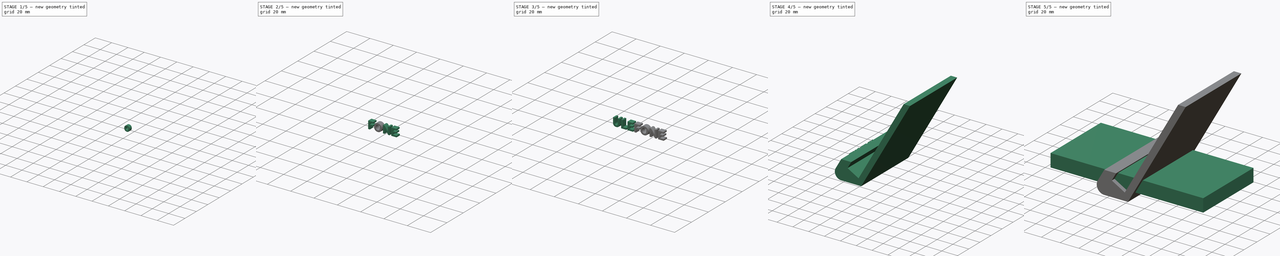
[diagram: build sequence overview — one tinted view per stage of 5, left to right]
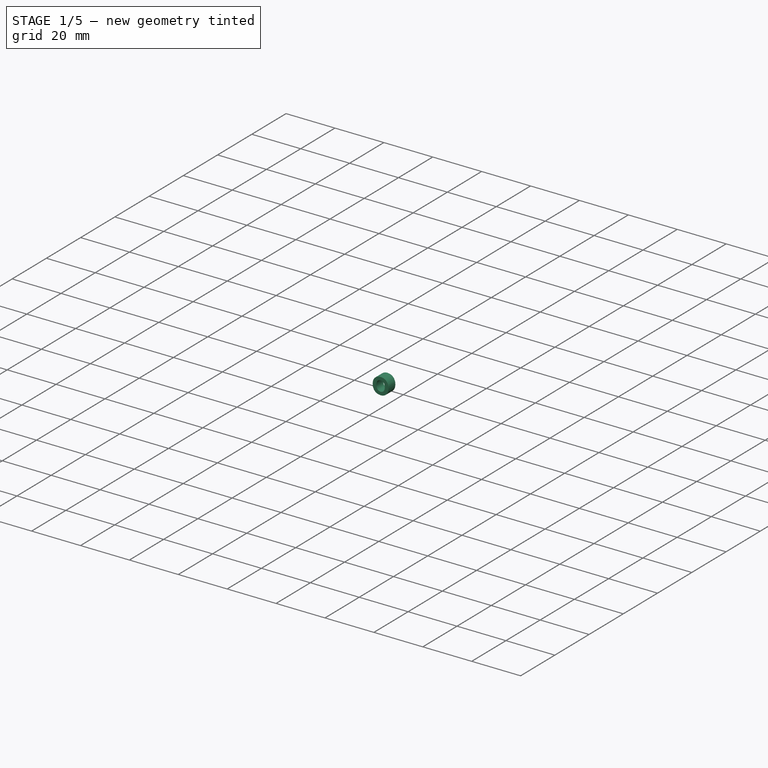
[diagram: stage 1 of 5 — iso view after this stage's code; geometry added in this stage tinted green]
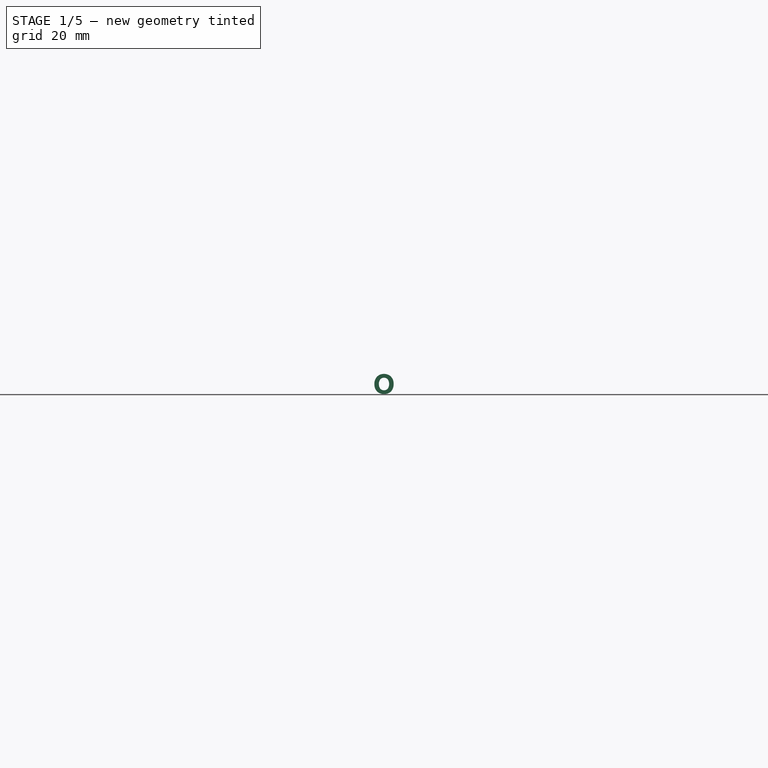
[diagram: stage 1 of 5 — front view after this stage's code; geometry added in this stage tinted green]
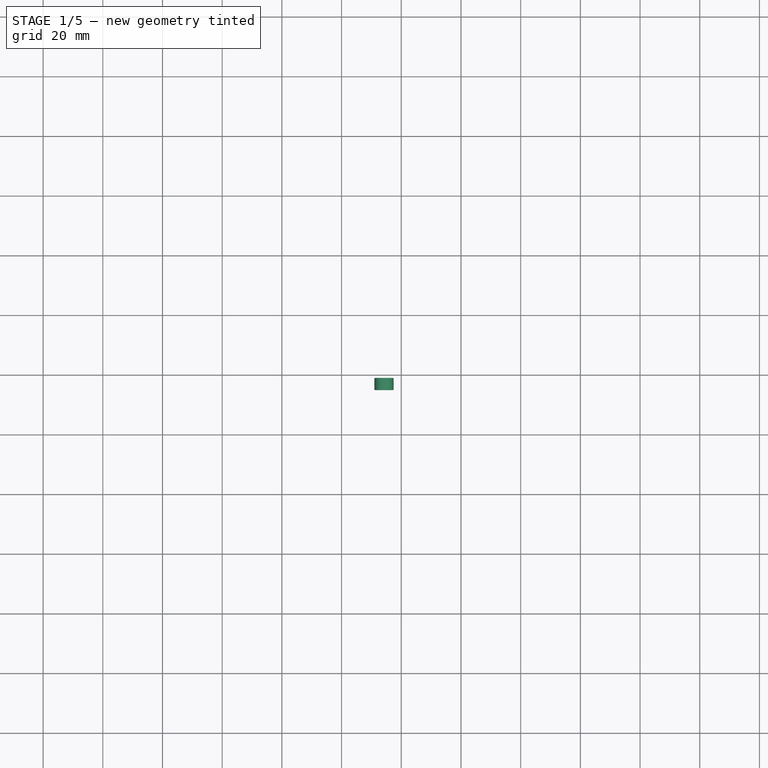
[diagram: stage 1 of 5 — top view after this stage's code; geometry added in this stage tinted green]
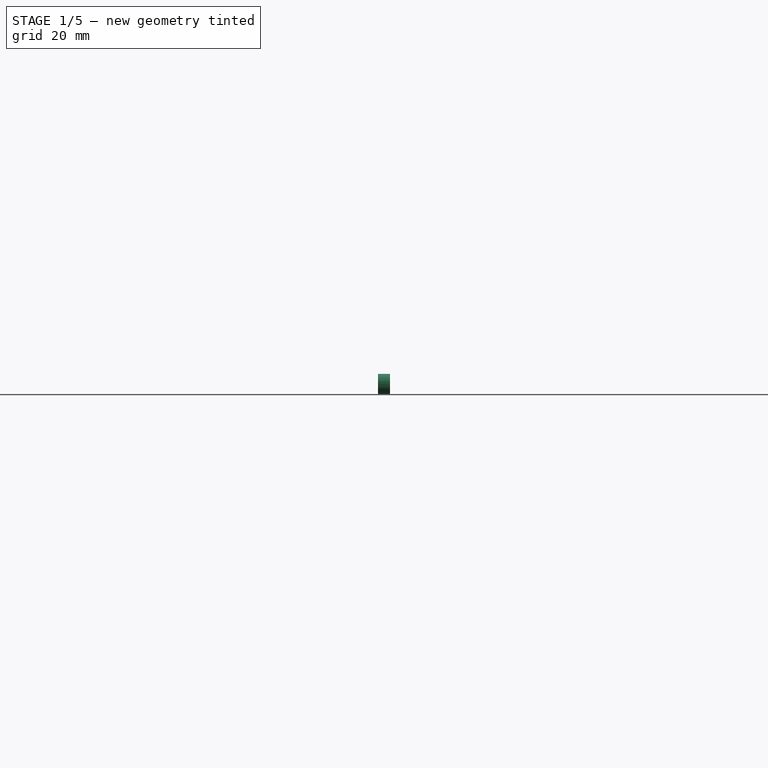
[diagram: stage 1 of 5 — right view after this stage's code; geometry added in this stage tinted green]
FCSTD DOCUMENT  (FreeCAD 0.18R16146 (Git))
Label: soportemovil
License: All rights reserved
LicenseURL: http://en.wikipedia.org/wiki/All_rights_reserved
objects: Part::Feature×9, Part::Extrusion×8, Sketcher::SketchObject×2, PartDesign::Pad×2, PartDesign::Body×2, Part::Cut×2, Part::MultiFuse×2, PartDesign::Fillet×1
note: 30 computed .brp shape members not serialized (recipe doc carries the construction recipe); baked Part::Feature solids carry a one-line shape summary decoded from their .brp

FEATURE [Part::Extrusion] Extrude004
  Base = -> path3740
  Dir = (0,-1,2e-16)
  DirMode = 2
  FaceMakerClass = Part::FaceMakerBullseye
  LengthFwd = 4
  LengthRev = 0
  Solid = true
  Symmetric = true
FEATURE [Part::Extrusion] Extrude005
  Base = -> path3740001
  Dir = (0,1,-2e-16)
  DirMode = 2
  FaceMakerClass = Part::FaceMakerBullseye
  LengthFwd = 4
  LengthRev = 0
  Solid = true
  Symmetric = true
FEATURE [Part::Cut] Cut
  Base = -> Extrude005
  Tool = -> Extrude004
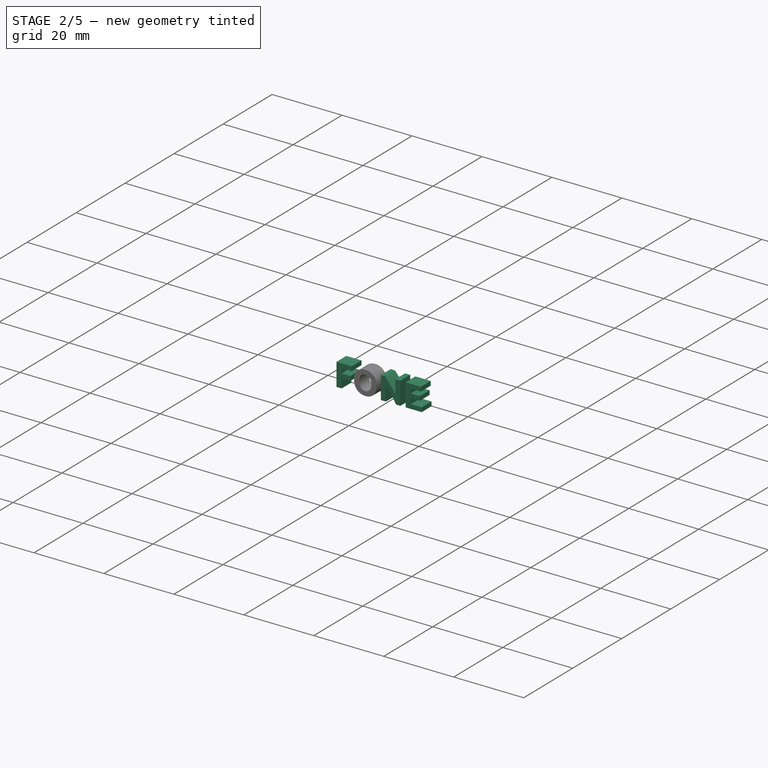
[diagram: stage 2 of 5 — iso view after this stage's code; geometry added in this stage tinted green]
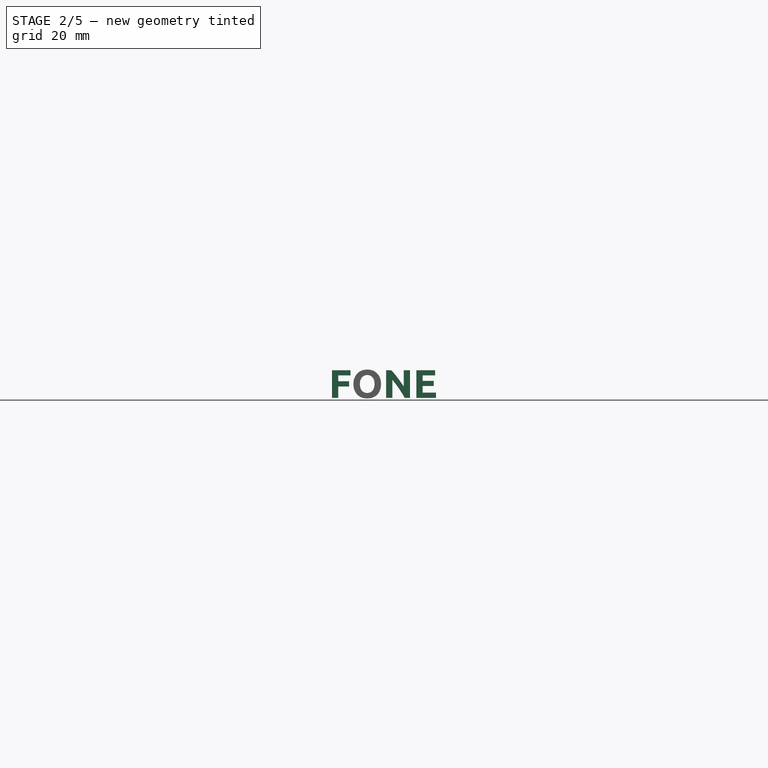
[diagram: stage 2 of 5 — front view after this stage's code; geometry added in this stage tinted green]
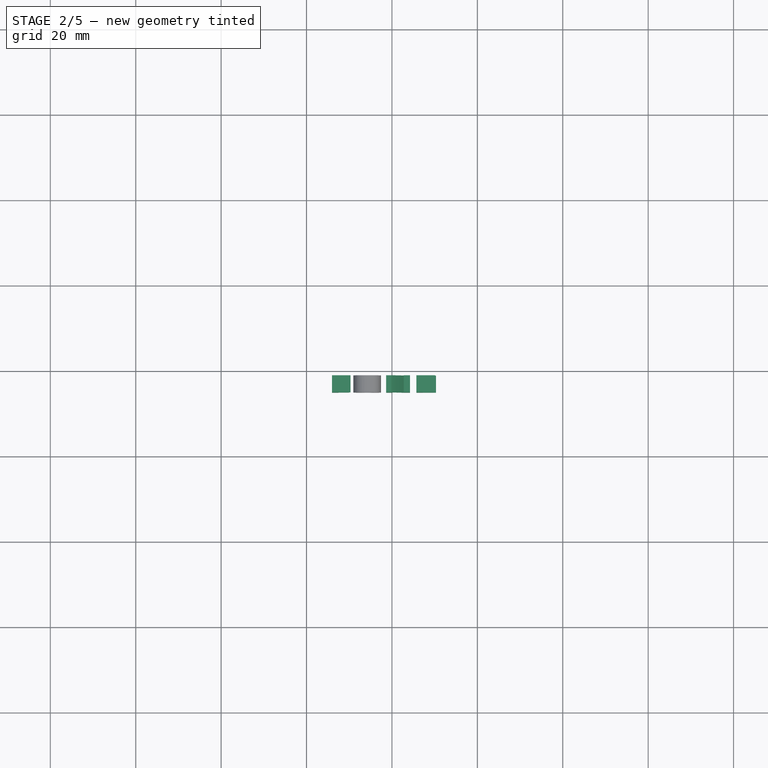
[diagram: stage 2 of 5 — top view after this stage's code; geometry added in this stage tinted green]
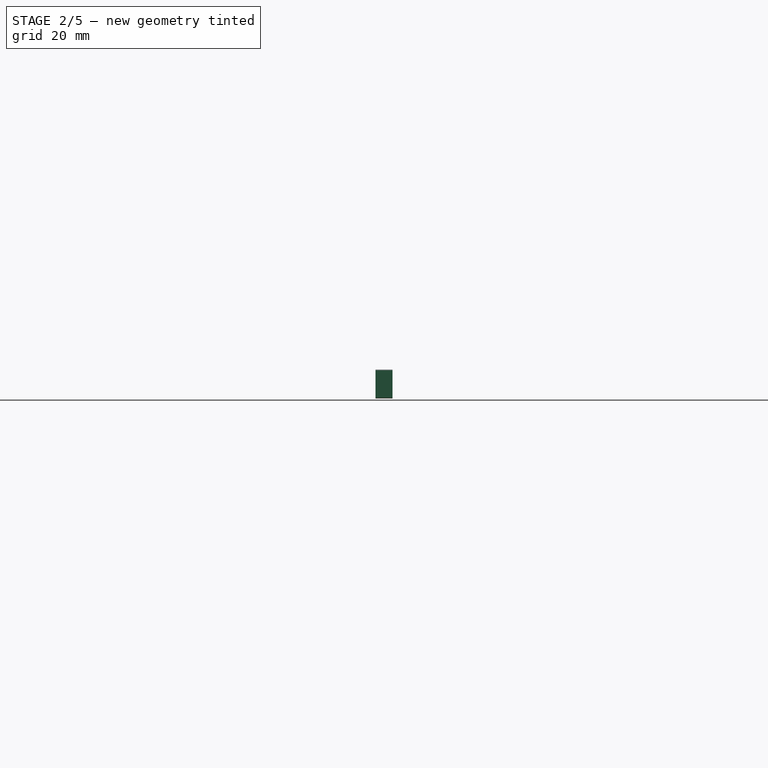
[diagram: stage 2 of 5 — right view after this stage's code; geometry added in this stage tinted green]
FEATURE [Part::Extrusion] Extrude003
  Base = -> path3738
  Dir = (0,1,-2e-16)
  DirMode = 2
  FaceMakerClass = Part::FaceMakerBullseye
  LengthFwd = 4
  LengthRev = 0
  Solid = true
  Symmetric = true
FEATURE [Part::Extrusion] Extrude006
  Base = -> path3742
  Dir = (0,1,-2e-16)
  DirMode = 2
  FaceMakerClass = Part::FaceMakerBullseye
  LengthFwd = 4
  LengthRev = 0
  Solid = true
  Symmetric = true
FEATURE [Part::Extrusion] Extrude007
  Base = -> path3744
  Dir = (0,1,-2e-16)
  DirMode = 2
  FaceMakerClass = Part::FaceMakerBullseye
  LengthFwd = 4
  LengthRev = 0
  Solid = true
  Symmetric = true
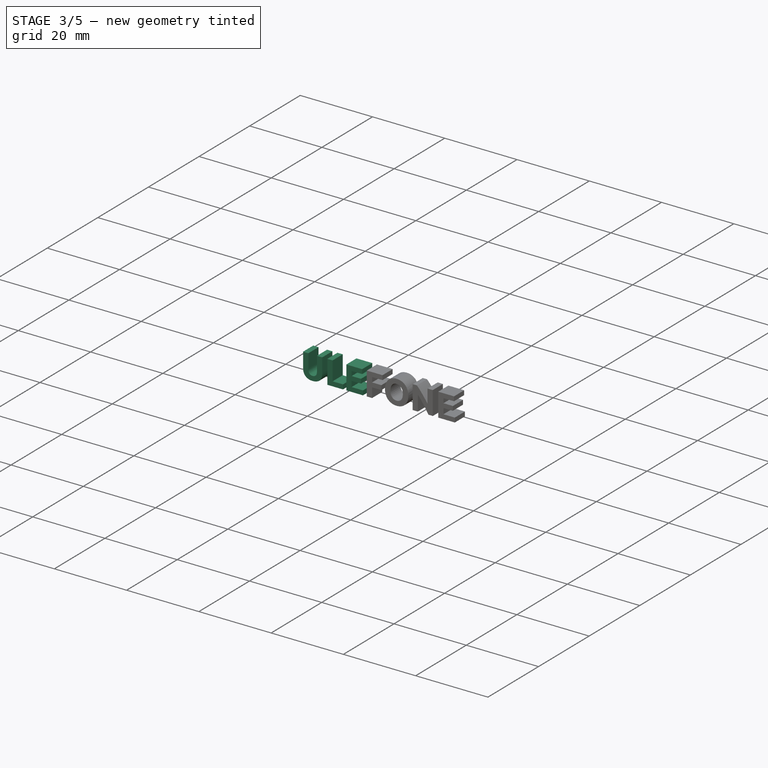
[diagram: stage 3 of 5 — iso view after this stage's code; geometry added in this stage tinted green]
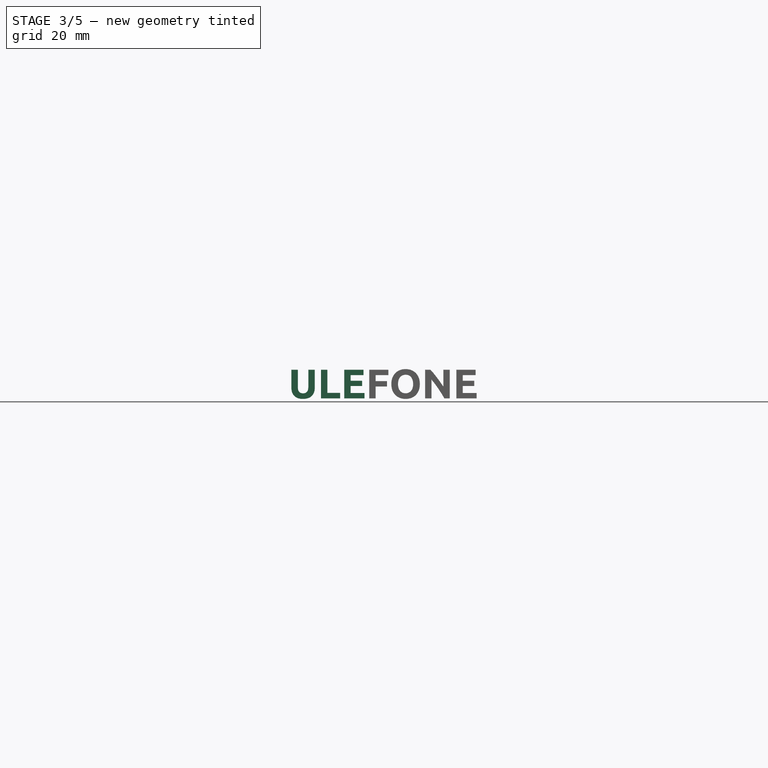
[diagram: stage 3 of 5 — front view after this stage's code; geometry added in this stage tinted green]
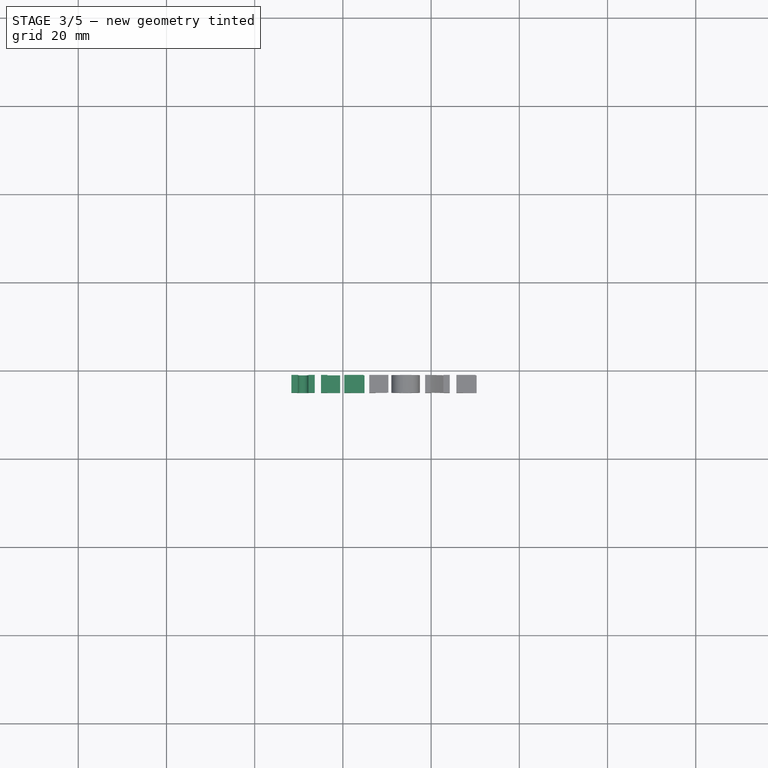
[diagram: stage 3 of 5 — top view after this stage's code; geometry added in this stage tinted green]
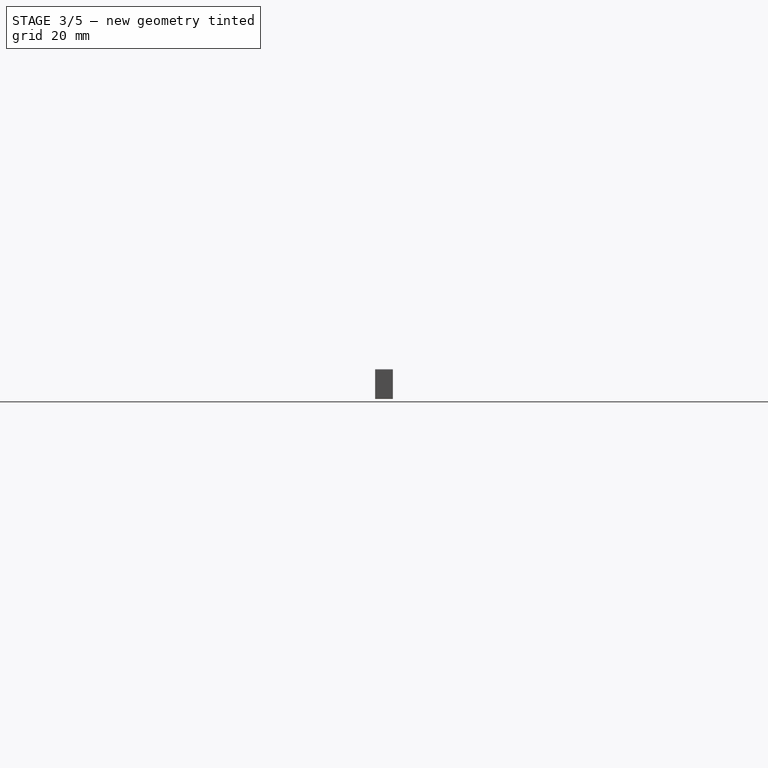
[diagram: stage 3 of 5 — right view after this stage's code; geometry added in this stage tinted green]
FEATURE [PartDesign::Body] Body001
  Group = -> [Sketch001,Pad001,Fillet]
  Origin = -> Origin001
  Tip = -> Fillet
FEATURE [Part::Feature] path3732
  Placement = pos=(-34,-3,12) rot=(1,0,0;1.5708rad)
  shape: bbox 5.307 x 2e-07 x 6.617 mm, 0 faces, 0 solids (baked)
FEATURE [Part::Feature] path3734
  Placement = pos=(-34,-3,12) rot=(1,0,0;1.5708rad)
  shape: bbox 4.334 x 2e-07 x 6.486 mm, 0 faces, 0 solids (baked)
FEATURE [Part::Feature] path3736
  Placement = pos=(-34,-3,12) rot=(1,0,0;1.5708rad)
  shape: bbox 4.596 x 2e-07 x 6.486 mm, 0 faces, 0 solids (baked)
FEATURE [Part::Feature] path3738
  Placement = pos=(-34,-3,12) rot=(1,0,0;1.5708rad)
  shape: bbox 4.343 x 2e-07 x 6.486 mm, 0 faces, 0 solids (baked)
FEATURE [Part::Feature] path3740
  Placement = pos=(-34,-3,12) rot=(1,0,0;1.5708rad)
  shape: bbox 3.444 x 2e-07 x 4.203 mm, 0 faces, 0 solids (baked)
FEATURE [Part::Feature] path3740001
  Placement = pos=(-34,-3,12) rot=(1,0,0;1.5708rad)
  shape: bbox 6.458 x 2e-07 x 6.767 mm, 0 faces, 0 solids (baked)
FEATURE [Part::Feature] path3742
  Placement = pos=(-34,-3,12) rot=(1,0,0;1.5708rad)
  shape: bbox 5.578 x 2e-07 x 6.486 mm, 0 faces, 0 solids (baked)
FEATURE [Part::Feature] path3744
  Placement = pos=(-34,-3,12) rot=(1,0,0;1.5708rad)
  shape: bbox 4.596 x 2e-07 x 6.486 mm, 0 faces, 0 solids (baked)
FEATURE [Part::Extrusion] Extrude
  Base = -> path3732
  Dir = (0,1,-2e-16)
  DirMode = 2
  FaceMakerClass = Part::FaceMakerBullseye
  LengthFwd = 4
  LengthRev = 0
  Solid = true
  Symmetric = true
FEATURE [Part::Extrusion] Extrude001
  Base = -> path3734
  Dir = (0,1,-2e-16)
  DirMode = 2
  FaceMakerClass = Part::FaceMakerBullseye
  LengthFwd = 4
  LengthRev = 0
  Solid = true
  Symmetric = true
FEATURE [Part::Extrusion] Extrude002
  Base = -> path3736
  Dir = (0,1,-2e-16)
  DirMode = 2
  FaceMakerClass = Part::FaceMakerBullseye
  LengthFwd = 4
  LengthRev = 0
  Solid = true
  Symmetric = true
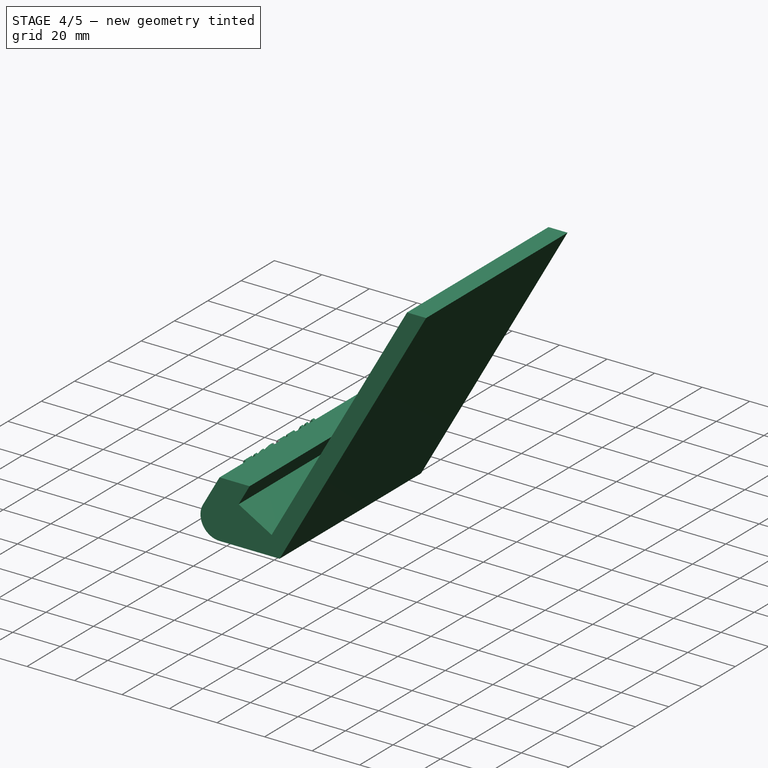
[diagram: stage 4 of 5 — iso view after this stage's code; geometry added in this stage tinted green]
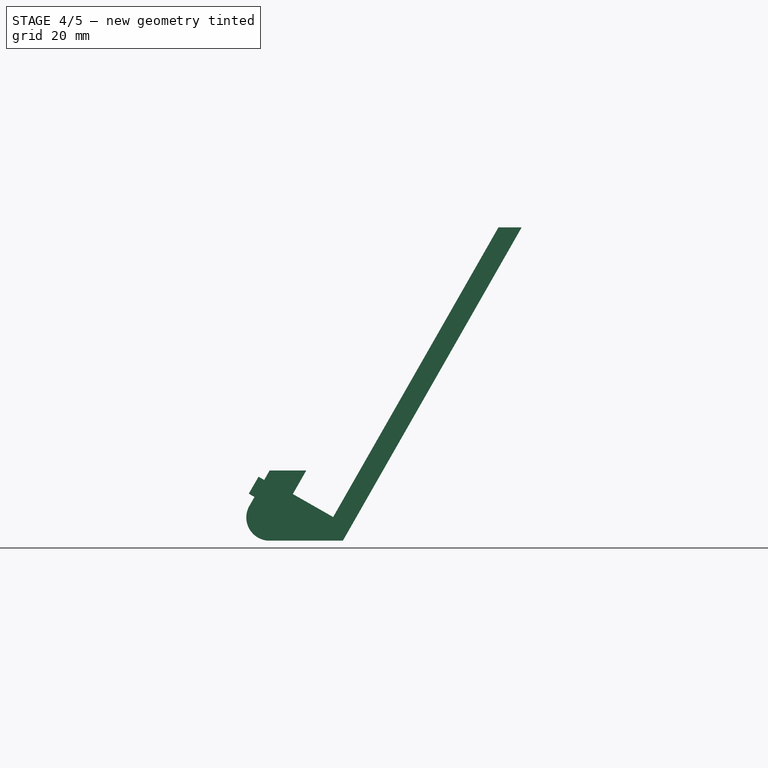
[diagram: stage 4 of 5 — front view after this stage's code; geometry added in this stage tinted green]
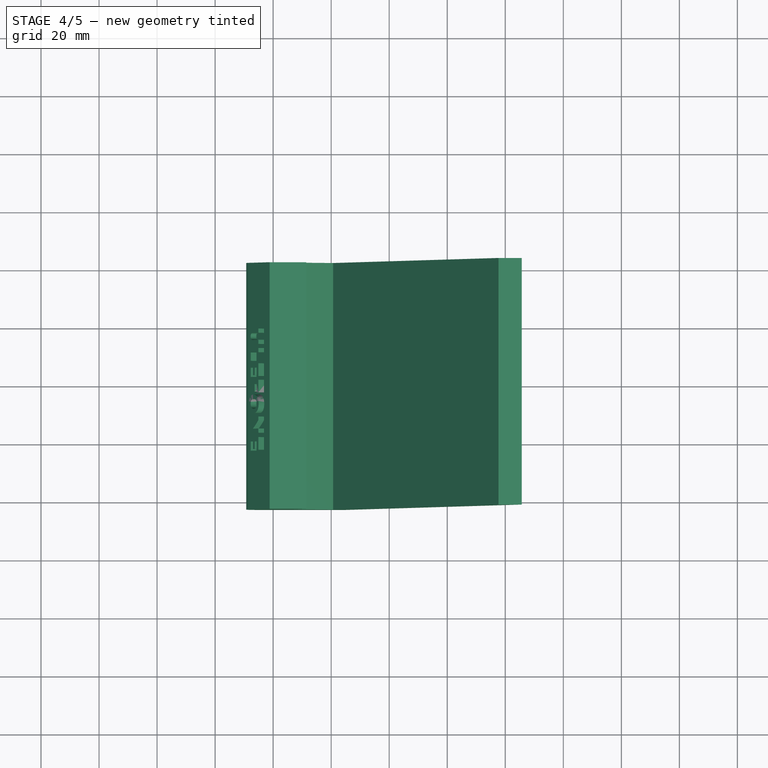
[diagram: stage 4 of 5 — top view after this stage's code; geometry added in this stage tinted green]
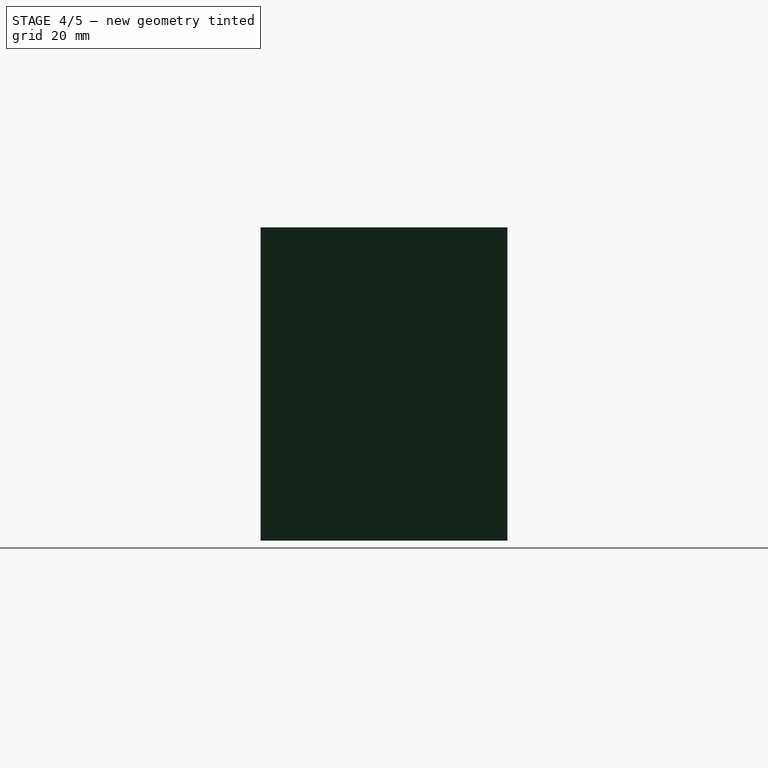
[diagram: stage 4 of 5 — right view after this stage's code; geometry added in this stage tinted green]
FEATURE [PartDesign::Body] Body
  Group = -> [Sketch,Pad]
  Origin = -> Origin
  Placement = pos=(41,0,71) rot=(0,-1,0;1.0472rad)
  Tip = -> Pad
FEATURE [Sketcher::SketchObject] Sketch001
  MapMode = 5
  Placement = pos=(0,0,0) rot=(1,0,0;1.5708rad)
  Support = -> [XZ_Plane001]
  sketch-geometry (8):
    g0: LineSegment StartX=-35.0281 StartY=-8.76259 StartZ=0 EndX=-21.2251 EndY=15.4268 EndZ=0
    g1: LineSegment StartX=-21.2251 StartY=15.4268 StartZ=0 EndX=-8.58869 EndY=15.4268 EndZ=0
    g2: LineSegment StartX=-8.58869 StartY=15.4268 StartZ=0 EndX=-13.2154 EndY=7.31853 EndZ=0
    g3: LineSegment StartX=-13.2154 StartY=7.31853 StartZ=0 EndX=0.681274 EndY=-0.611232 EndZ=0
    g4: LineSegment StartX=0.681274 StartY=-0.611232 StartZ=0 EndX=57.657 EndY=99.2374 EndZ=0
    g5: LineSegment StartX=65.657 StartY=99.2374 StartZ=0 EndX=4.02994 EndY=-8.76259 EndZ=0
    g6: LineSegment StartX=4.02994 StartY=-8.76259 StartZ=0 EndX=-35.0281 EndY=-8.76259 EndZ=0
    g7: LineSegment StartX=57.657 StartY=99.2374 StartZ=0 EndX=65.657 EndY=99.2374 EndZ=0
  constraints (19):
    c: Coincident(g0,g1)
    c: Coincident(g1,g2)
    c: Coincident(g2,g3)
    c: Coincident(g3,g4)
    c: Coincident(g6,g0)
    c: Horizontal(g6)
    c: Parallel(g4,g0)
    c: Coincident(g5,g6)
    c: Horizontal(g1)
    c: Parallel(g2,g4)
    c: Perpendicular(g4,g3)
    c: Horizontal(g7)
    c: Parallel(g4,g5)
    c: Coincident(g4,g7)
    c: Coincident(g5,g7)
    c: DistanceX(g7,g7) = 8
    c: DistanceY(g5,g5) = 108
    c: Angle(g6,g0) = 1.05226
    c: Distance(g3,g2) = 16
FEATURE [PartDesign::Pad] Pad001
  Length = 85
  Length2 = 100
  Midplane = true
  Placement = pos=(0,0,0) rot=(1,0,0;1.5708rad)
  Profile = -> Sketch001
  Type = 0
FEATURE [PartDesign::Fillet] Fillet
  Base = -> Pad001 [Edge1]
  BaseFeature = -> Pad001
  Placement = pos=(0,0,0) rot=(1,0,0;1.5708rad)
  Radius = 8
FEATURE [Part::MultiFuse] Fusion
  Placement = pos=(-27.6962,-32,-1.33013) rot=(-0.250563,0.250563,-0.935113;1.63783rad)
  Shapes = -> [Extrude,Cut,Extrude006,Extrude003,Extrude002,Extrude001,Extrude007]
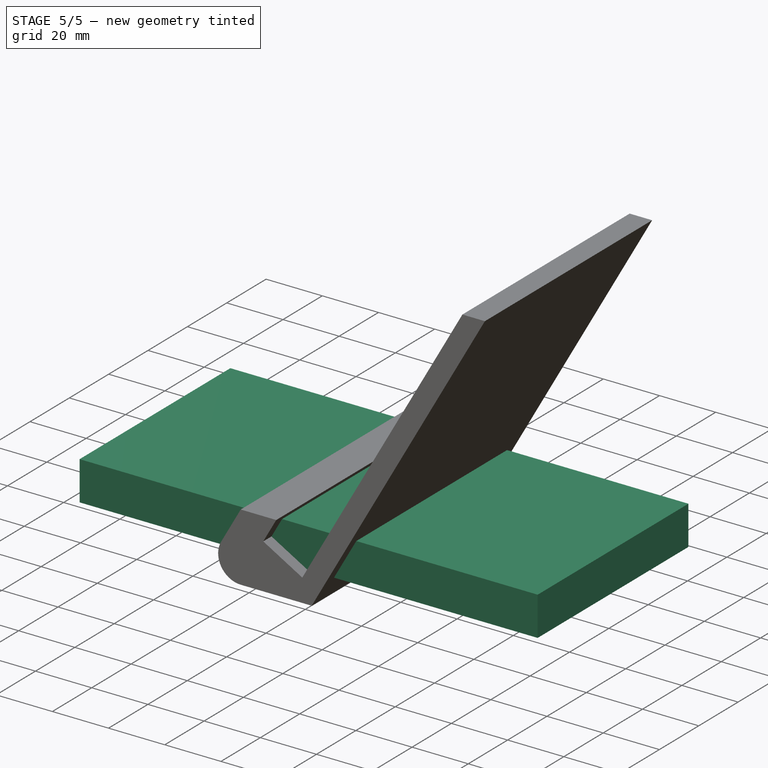
[diagram: stage 5 of 5 — iso view after this stage's code; geometry added in this stage tinted green]
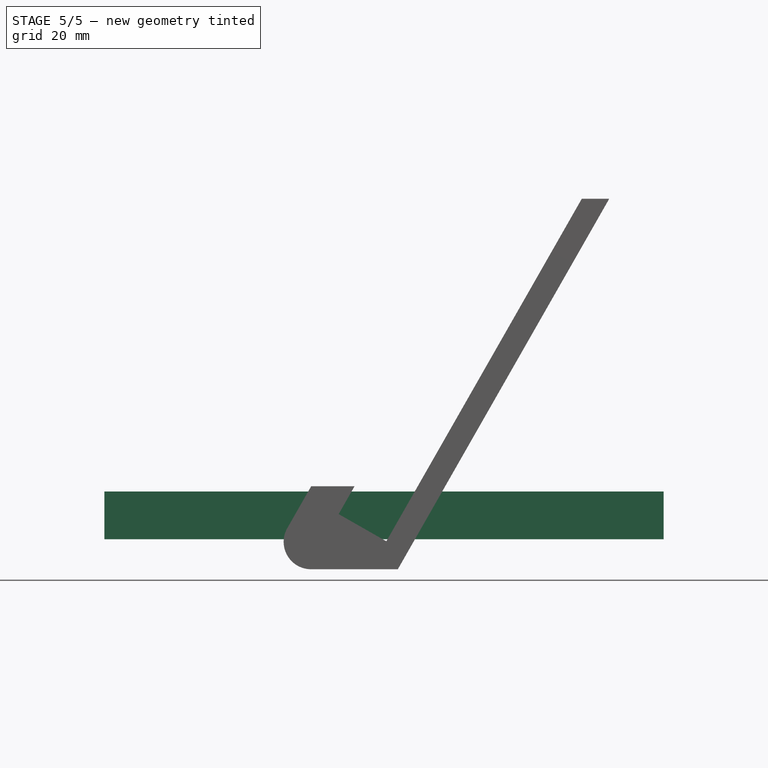
[diagram: stage 5 of 5 — front view after this stage's code; geometry added in this stage tinted green]
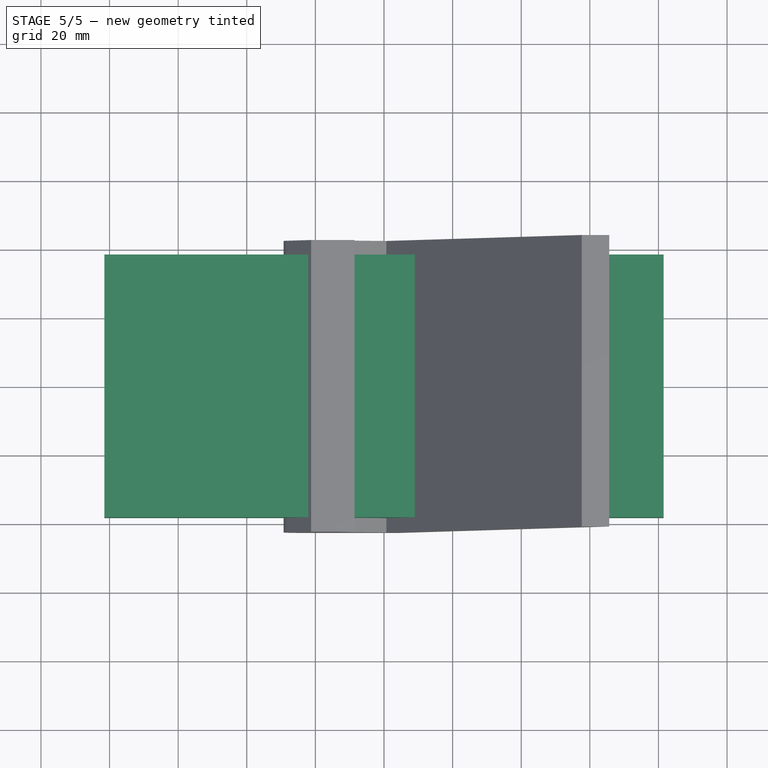
[diagram: stage 5 of 5 — top view after this stage's code; geometry added in this stage tinted green]
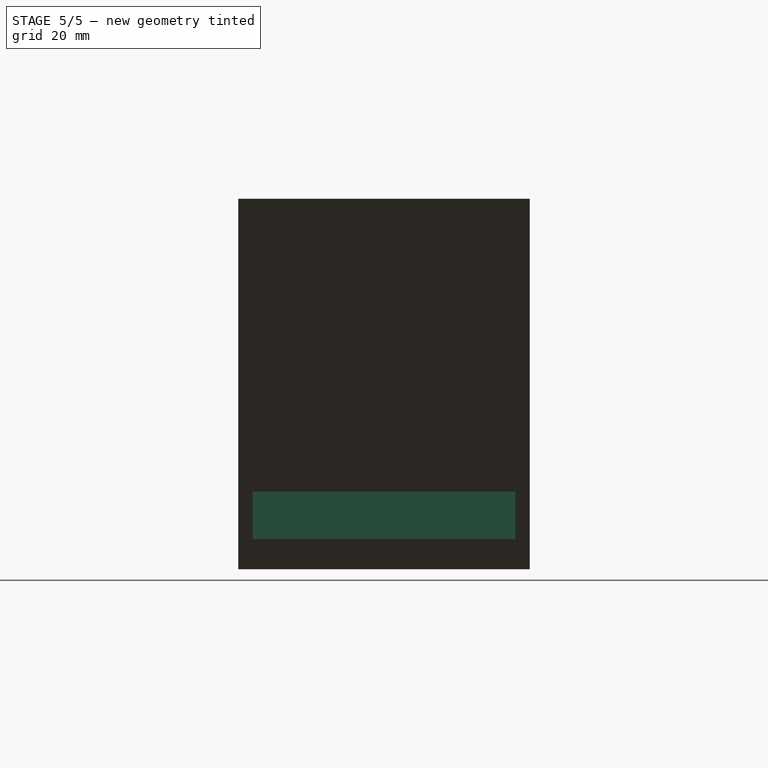
[diagram: stage 5 of 5 — right view after this stage's code; geometry added in this stage tinted green]
FEATURE [Sketcher::SketchObject] Sketch
  MapMode = 5
  Support = -> [XY_Plane]
  sketch-geometry (4):
    g0: LineSegment StartX=-81.5 StartY=38.3 StartZ=0 EndX=81.5 EndY=38.3 EndZ=0
    g1: LineSegment StartX=81.5 StartY=38.3 StartZ=0 EndX=81.5 EndY=-38.3 EndZ=0
    g2: LineSegment StartX=81.5 StartY=-38.3 StartZ=0 EndX=-81.5 EndY=-38.3 EndZ=0
    g3: LineSegment StartX=-81.5 StartY=-38.3 StartZ=0 EndX=-81.5 EndY=38.3 EndZ=0
  constraints (11):
    c: Coincident(g0,g1)
    c: Coincident(g1,g2)
    c: Coincident(g2,g3)
    c: Coincident(g3,g0)
    c: Horizontal(g0)
    c: Horizontal(g2)
    c: Vertical(g1)
    c: Vertical(g3)
    c: Symmetric(g0,g2,g-1)
    c: DistanceX(g0,g0) = 163
    c: DistanceY(g1,g1) = 76.6
FEATURE [PartDesign::Pad] Pad  label="movil"
  Length = 13.9
  Length2 = 100
  Profile = -> Sketch
  Type = 0
FEATURE [Part::Cut] Cut001
  Base = -> Fillet
  Tool = -> Fusion
FEATURE [Part::MultiFuse] Fusion001
  Refine = true
  Shapes = -> [Body001,Cut001]
FEATURE [Part::Feature] Cut001001  label="Cut002"
  shape: bbox 94.91 x 85 x 108 mm, 126 faces (baked)
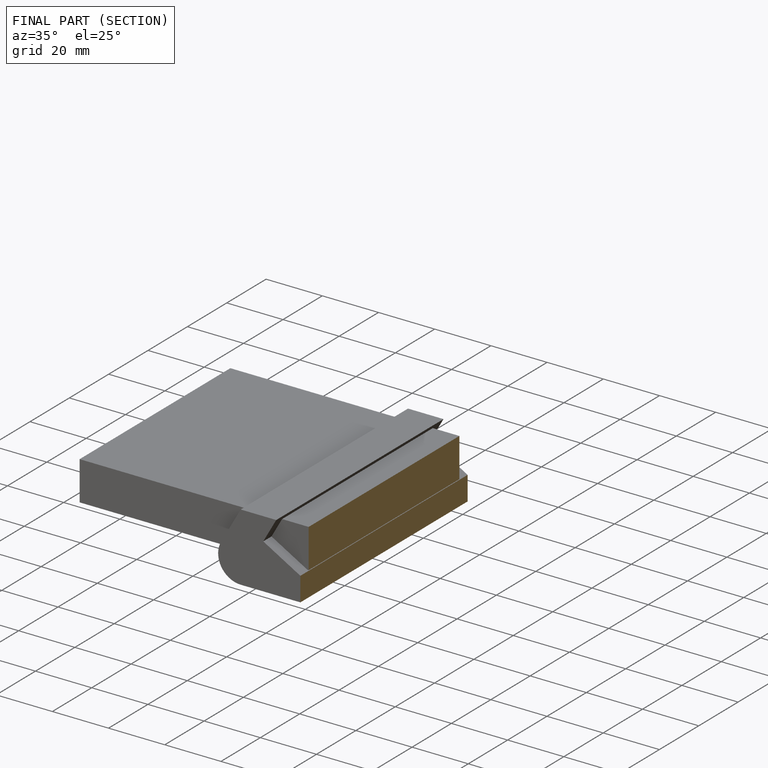
[diagram: finished part — half-section view (interior)]
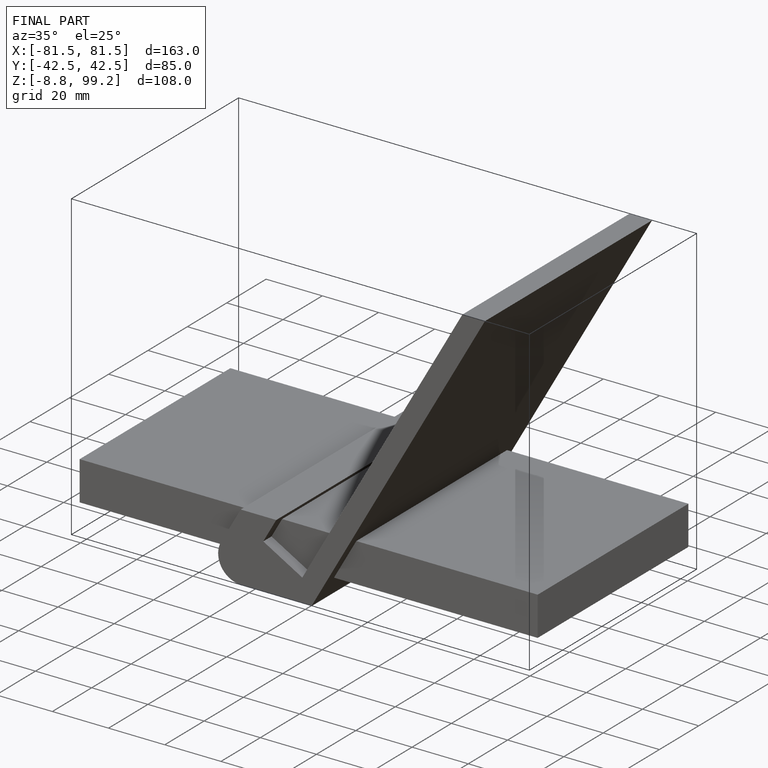
[diagram: finished part — iso view with bounding-box wireframe]
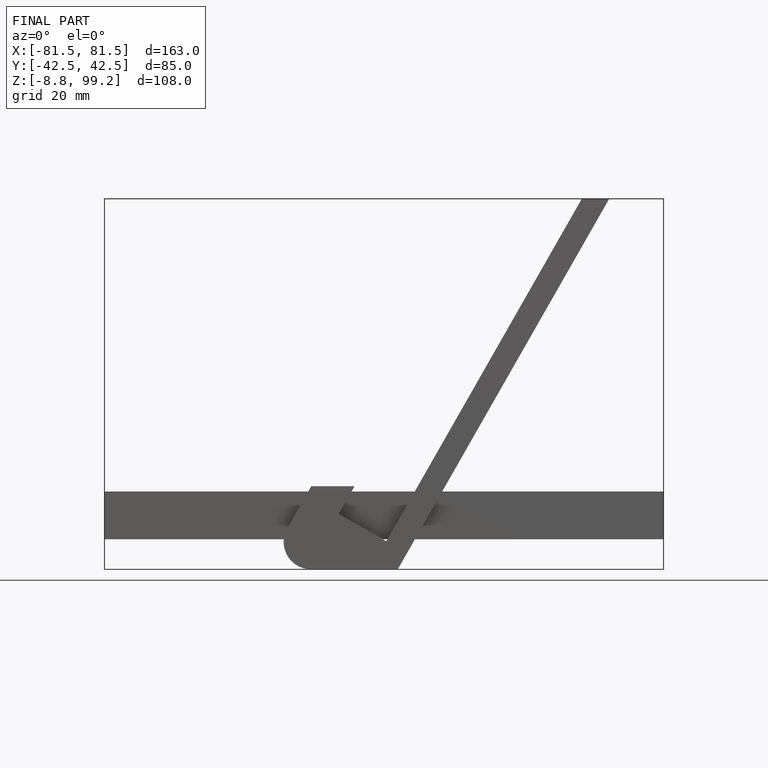
[diagram: finished part — front view with bounding-box wireframe]
